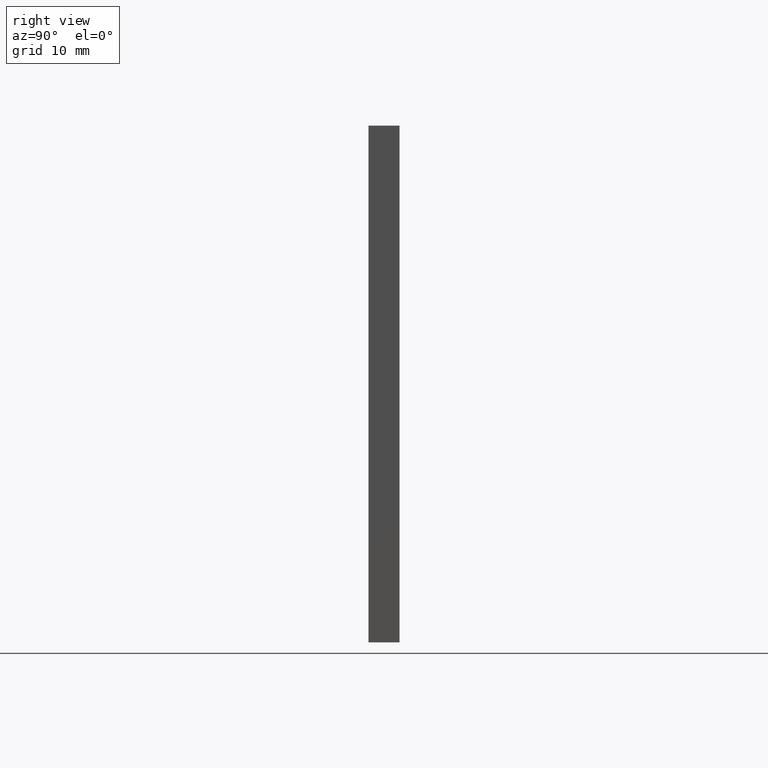
[diagram: clean part render]
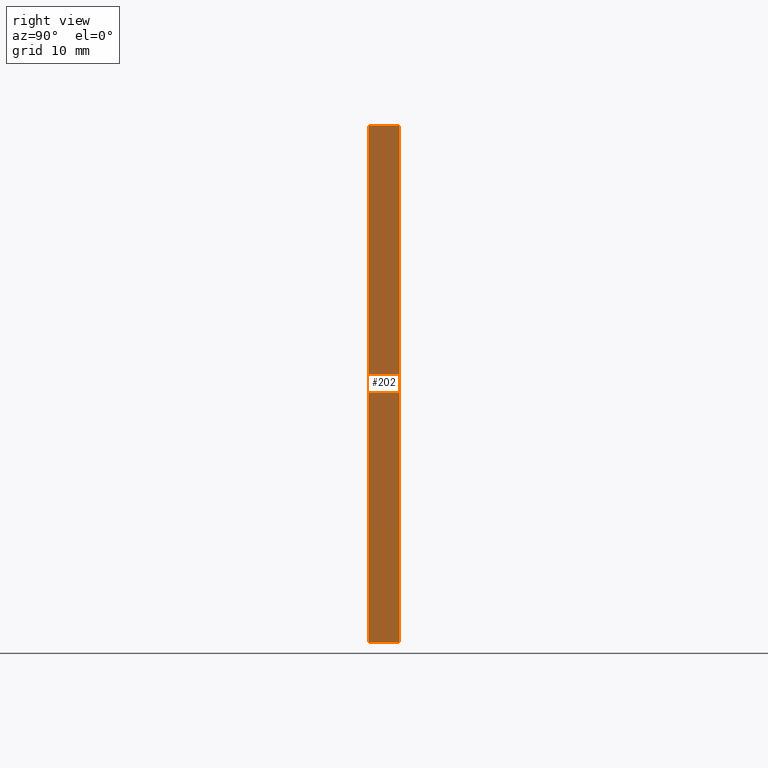
[diagram: same view with one face highlighted and labeled with its STEP entity id]
A machine part, right view. The second image highlights one B-rep face of the part: STEP entity #202.
In plain terms, the highlighted planar face has unit normal (-1, 0, 0).
Its self-contained STEP definition (entity closure, byte-faithful):
#7 = LINE ( 'NONE', #42, #78 ) ;
#21 = VERTEX_POINT ( 'NONE', #36 ) ;
#26 = LINE ( 'NONE', #103, #178 ) ;
#32 = VECTOR ( 'NONE', #167, 1000.000000000000000 ) ;
#35 = CARTESIAN_POINT ( 'NONE',  ( 25.00000000000000000, 3.000000000000000000, -24.99999999999999300 ) ) ;
#36 = CARTESIAN_POINT ( 'NONE',  ( 25.00000000000000700, 3.000000000000000000, 25.00000000000000700 ) ) ;
#42 = CARTESIAN_POINT ( 'NONE',  ( 25.00000000000000700, 3.000000000000000000, 25.00000000000000700 ) ) ;
#43 = VERTEX_POINT ( 'NONE', #35 ) ;
#48 = CARTESIAN_POINT ( 'NONE',  ( 25.00000000000000000, 3.000000000000000000, -24.99999999999999300 ) ) ;
#57 = VERTEX_POINT ( 'NONE', #104 ) ;
#67 = ORIENTED_EDGE ( 'NONE', *, *, #191, .T. ) ;
#68 = CARTESIAN_POINT ( 'NONE',  ( 25.00000000000000000, 3.000000000000000000, -24.99999999999999300 ) ) ;
#71 = LINE ( 'NONE', #48, #189 ) ;
#72 = DIRECTION ( 'NONE',  ( -0.0000000000000000000, -1.000000000000000000, -0.0000000000000000000 ) ) ;
#78 = VECTOR ( 'NONE', #157, 1000.000000000000000 ) ;
#95 = EDGE_LOOP ( 'NONE', ( #67, #180, #101, #152 ) ) ;
#101 = ORIENTED_EDGE ( 'NONE', *, *, #140, .F. ) ;
#103 = CARTESIAN_POINT ( 'NONE',  ( 25.00000000000000000, 0.0000000000000000000, -24.99999999999999300 ) ) ;
#104 = CARTESIAN_POINT ( 'NONE',  ( 25.00000000000000700, 0.0000000000000000000, 25.00000000000000700 ) ) ;
#122 = AXIS2_PLACEMENT_3D ( 'NONE', #130, #160, #144 ) ;
#126 = CARTESIAN_POINT ( 'NONE',  ( 25.00000000000000000, 0.0000000000000000000, -24.99999999999999300 ) ) ;
#130 = CARTESIAN_POINT ( 'NONE',  ( 25.00000000000000000, 3.000000000000000000, -24.99999999999999300 ) ) ;
#140 = EDGE_CURVE ( 'NONE', #21, #43, #177, .T. ) ;
#144 = DIRECTION ( 'NONE',  ( 1.387778780781445400E-016, 0.0000000000000000000, 1.000000000000000000 ) ) ;
#152 = ORIENTED_EDGE ( 'NONE', *, *, #159, .T. ) ;
#157 = DIRECTION ( 'NONE',  ( -0.0000000000000000000, -1.000000000000000000, -0.0000000000000000000 ) ) ;
#158 = FACE_OUTER_BOUND ( 'NONE', #95, .T. ) ;
#159 = EDGE_CURVE ( 'NONE', #21, #57, #7, .T. ) ;
#160 = DIRECTION ( 'NONE',  ( -1.000000000000000000, 0.0000000000000000000, 1.387778780781445400E-016 ) ) ;
#167 = DIRECTION ( 'NONE',  ( -1.387778780781445700E-016, -0.0000000000000000000, -1.000000000000000000 ) ) ;
#172 = PLANE ( 'NONE',  #122 ) ;
#173 = EDGE_CURVE ( 'NONE', #43, #201, #71, .T. ) ;
#177 = LINE ( 'NONE', #68, #32 ) ;
#178 = VECTOR ( 'NONE', #192, 1000.000000000000000 ) ;
#180 = ORIENTED_EDGE ( 'NONE', *, *, #173, .F. ) ;
#189 = VECTOR ( 'NONE', #72, 1000.000000000000000 ) ;
#191 = EDGE_CURVE ( 'NONE', #57, #201, #26, .T. ) ;
#192 = DIRECTION ( 'NONE',  ( -1.387778780781445700E-016, -0.0000000000000000000, -1.000000000000000000 ) ) ;
#201 = VERTEX_POINT ( 'NONE', #126 ) ;
#202 = ADVANCED_FACE ( 'NONE', ( #158 ), #172, .F. ) ;